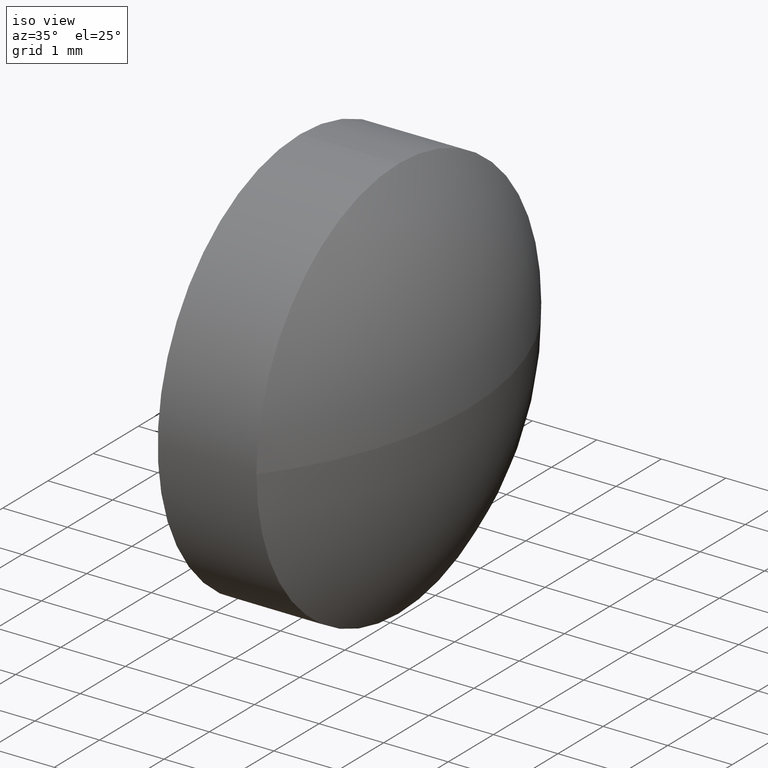
[diagram: clean part render]
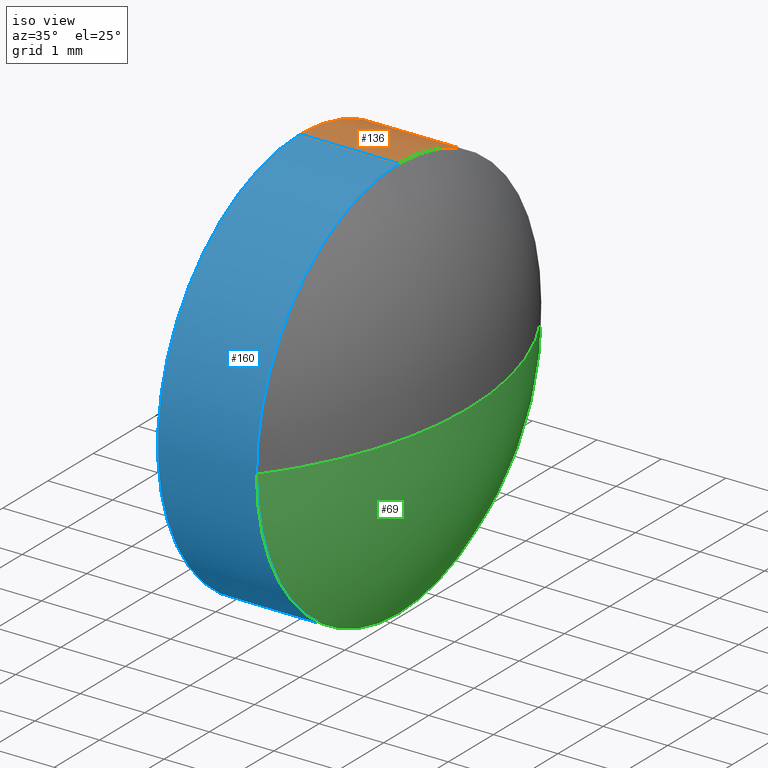
[diagram: same view with three faces highlighted in distinct colors, each labeled with its STEP entity id]
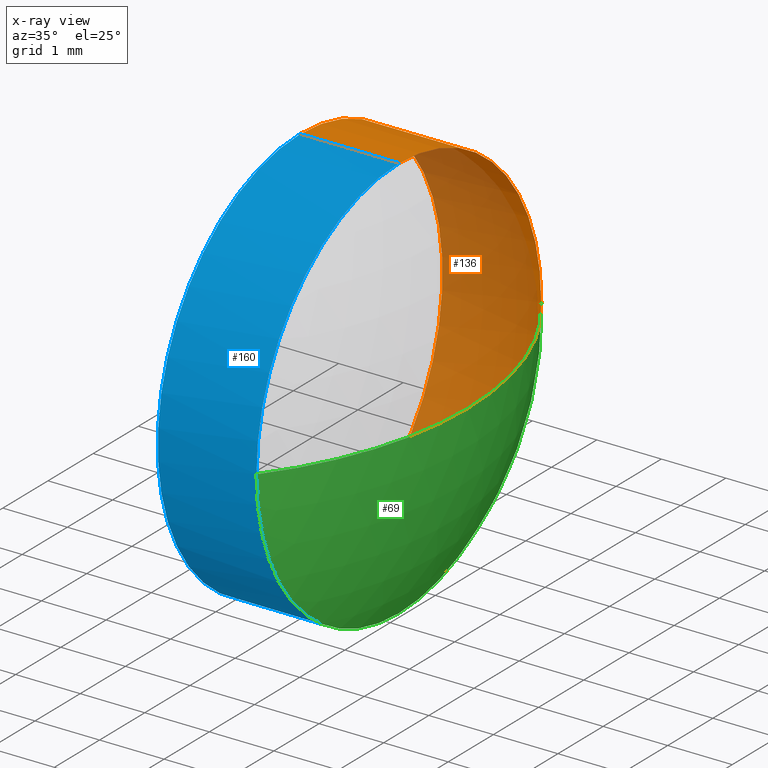
[diagram: x-ray of the same camera — body ghosted, the three highlighted faces saturated]
A machine part, iso view with three faces highlighted in distinct colors.
The next image is the same camera in x-ray (body ghosted, the three faces saturated) — at least one of them is partly hidden behind the body in this view.
Their STEP definitions:

[orange] entity #136 — the highlighted cylindrical surface (partial cylindrical patch) has radius 3.15 mm, axis along (-1, -0, -0).
#3 = DIRECTION ( 'NONE',  ( -1.000000000000000000, -0.0000000000000000000, -0.0000000000000000000 ) ) ;
#8 = FACE_OUTER_BOUND ( 'NONE', #154, .T. ) ;
#11 = CARTESIAN_POINT ( 'NONE',  ( 351.5720176784386700, 25.04791477200547300, 0.0000000000000000000 ) ) ;
#16 = CIRCLE ( 'NONE', #55, 3.149999999999996400 ) ;
#22 = CARTESIAN_POINT ( 'NONE',  ( 353.1020176784387000, 25.04791477200547300, 0.0000000000000000000 ) ) ;
#24 = VERTEX_POINT ( 'NONE', #51 ) ;
#27 = DIRECTION ( 'NONE',  ( 0.0000000000000000000, 0.0000000000000000000, 1.000000000000000000 ) ) ;
#29 = VERTEX_POINT ( 'NONE', #132 ) ;
#32 = VECTOR ( 'NONE', #131, 1000.000000000000000 ) ;
#47 = ORIENTED_EDGE ( 'NONE', *, *, #48, .F. ) ;
#48 = EDGE_CURVE ( 'NONE', #170, #24, #16, .T. ) ;
#49 = CARTESIAN_POINT ( 'NONE',  ( 350.7103895088541800, 25.04791477200547300, -3.149999999999996400 ) ) ;
#51 = CARTESIAN_POINT ( 'NONE',  ( 351.5720176784386700, 25.04791477200547300, -3.149999999999996400 ) ) ;
#55 = AXIS2_PLACEMENT_3D ( 'NONE', #11, #80, #27 ) ;
#60 = VERTEX_POINT ( 'NONE', #65 ) ;
#61 = LINE ( 'NONE', #112, #81 ) ;
#65 = CARTESIAN_POINT ( 'NONE',  ( 353.1020176784387000, 25.04791477200547300, 3.149999999999996400 ) ) ;
#71 = DIRECTION ( 'NONE',  ( 0.0000000000000000000, 0.0000000000000000000, 1.000000000000000000 ) ) ;
#72 = EDGE_CURVE ( 'NONE', #29, #134, #123, .T. ) ;
#75 = EDGE_CURVE ( 'NONE', #134, #24, #155, .T. ) ;
#80 = DIRECTION ( 'NONE',  ( -1.000000000000000000, -0.0000000000000000000, -0.0000000000000000000 ) ) ;
#81 = VECTOR ( 'NONE', #3, 1000.000000000000000 ) ;
#84 = ORIENTED_EDGE ( 'NONE', *, *, #168, .T. ) ;
#88 = DIRECTION ( 'NONE',  ( 0.0000000000000000000, 0.0000000000000000000, 1.000000000000000000 ) ) ;
#98 = CYLINDRICAL_SURFACE ( 'NONE', #153, 3.149999999999996400 ) ;
#103 = CARTESIAN_POINT ( 'NONE',  ( 353.1020176784387000, 25.04791477200547300, 0.0000000000000000000 ) ) ;
#112 = CARTESIAN_POINT ( 'NONE',  ( 350.7103895088541800, 25.04791477200547300, 3.149999999999996400 ) ) ;
#116 = ORIENTED_EDGE ( 'NONE', *, *, #75, .T. ) ;
#123 = CIRCLE ( 'NONE', #159, 3.149999999999996400 ) ;
#129 = DIRECTION ( 'NONE',  ( -1.000000000000000000, -0.0000000000000000000, -0.0000000000000000000 ) ) ;
#130 = EDGE_CURVE ( 'NONE', #60, #170, #61, .T. ) ;
#131 = DIRECTION ( 'NONE',  ( -1.000000000000000000, -0.0000000000000000000, -0.0000000000000000000 ) ) ;
#132 = CARTESIAN_POINT ( 'NONE',  ( 353.1020176784387000, 28.19791477200545800, 0.0000000000000000000 ) ) ;
#134 = VERTEX_POINT ( 'NONE', #177 ) ;
#136 = ADVANCED_FACE ( 'NONE', ( #8 ), #98, .T. ) ;
#145 = DIRECTION ( 'NONE',  ( 0.0000000000000000000, 0.0000000000000000000, 1.000000000000000000 ) ) ;
#147 = CARTESIAN_POINT ( 'NONE',  ( 350.7103895088541800, 25.04791477200547300, 0.0000000000000000000 ) ) ;
#149 = CIRCLE ( 'NONE', #186, 3.149999999999996400 ) ;
#153 = AXIS2_PLACEMENT_3D ( 'NONE', #147, #158, #88 ) ;
#154 = EDGE_LOOP ( 'NONE', ( #181, #116, #47, #165, #84 ) ) ;
#155 = LINE ( 'NONE', #49, #32 ) ;
#158 = DIRECTION ( 'NONE',  ( -1.000000000000000000, -0.0000000000000000000, -0.0000000000000000000 ) ) ;
#159 = AXIS2_PLACEMENT_3D ( 'NONE', #22, #129, #145 ) ;
#165 = ORIENTED_EDGE ( 'NONE', *, *, #130, .F. ) ;
#166 = DIRECTION ( 'NONE',  ( -1.000000000000000000, -0.0000000000000000000, -0.0000000000000000000 ) ) ;
#168 = EDGE_CURVE ( 'NONE', #60, #29, #149, .T. ) ;
#170 = VERTEX_POINT ( 'NONE', #178 ) ;
#177 = CARTESIAN_POINT ( 'NONE',  ( 353.1020176784387000, 25.04791477200547300, -3.149999999999996400 ) ) ;
#178 = CARTESIAN_POINT ( 'NONE',  ( 351.5720176784386700, 25.04791477200547300, 3.149999999999996400 ) ) ;
#181 = ORIENTED_EDGE ( 'NONE', *, *, #72, .T. ) ;
#186 = AXIS2_PLACEMENT_3D ( 'NONE', #103, #166, #71 ) ;

[blue] entity #160 — the highlighted cylindrical surface (partial cylindrical patch) has radius 3.15 mm, axis along (-1, -0, -0).
#3 = DIRECTION ( 'NONE',  ( -1.000000000000000000, -0.0000000000000000000, -0.0000000000000000000 ) ) ;
#10 = CARTESIAN_POINT ( 'NONE',  ( 353.1020176784387000, 25.04791477200547300, 0.0000000000000000000 ) ) ;
#17 = DIRECTION ( 'NONE',  ( -1.000000000000000000, -0.0000000000000000000, -0.0000000000000000000 ) ) ;
#24 = VERTEX_POINT ( 'NONE', #51 ) ;
#28 = CIRCLE ( 'NONE', #117, 3.149999999999996400 ) ;
#32 = VECTOR ( 'NONE', #131, 1000.000000000000000 ) ;
#34 = ORIENTED_EDGE ( 'NONE', *, *, #41, .T. ) ;
#38 = CARTESIAN_POINT ( 'NONE',  ( 353.1020176784387000, 21.89791477200547100, -3.857637417314142000E-016 ) ) ;
#41 = EDGE_CURVE ( 'NONE', #91, #60, #64, .T. ) ;
#42 = ORIENTED_EDGE ( 'NONE', *, *, #125, .T. ) ;
#49 = CARTESIAN_POINT ( 'NONE',  ( 350.7103895088541800, 25.04791477200547300, -3.149999999999996400 ) ) ;
#51 = CARTESIAN_POINT ( 'NONE',  ( 351.5720176784386700, 25.04791477200547300, -3.149999999999996400 ) ) ;
#52 = DIRECTION ( 'NONE',  ( 0.0000000000000000000, 0.0000000000000000000, 1.000000000000000000 ) ) ;
#56 = EDGE_LOOP ( 'NONE', ( #182, #42, #34, #95, #76 ) ) ;
#60 = VERTEX_POINT ( 'NONE', #65 ) ;
#61 = LINE ( 'NONE', #112, #81 ) ;
#64 = CIRCLE ( 'NONE', #111, 3.149999999999996400 ) ;
#65 = CARTESIAN_POINT ( 'NONE',  ( 353.1020176784387000, 25.04791477200547300, 3.149999999999996400 ) ) ;
#75 = EDGE_CURVE ( 'NONE', #134, #24, #155, .T. ) ;
#76 = ORIENTED_EDGE ( 'NONE', *, *, #133, .F. ) ;
#81 = VECTOR ( 'NONE', #3, 1000.000000000000000 ) ;
#82 = DIRECTION ( 'NONE',  ( -1.000000000000000000, -0.0000000000000000000, -0.0000000000000000000 ) ) ;
#83 = FACE_OUTER_BOUND ( 'NONE', #56, .T. ) ;
#86 = CARTESIAN_POINT ( 'NONE',  ( 350.7103895088541800, 25.04791477200547300, 0.0000000000000000000 ) ) ;
#91 = VERTEX_POINT ( 'NONE', #38 ) ;
#95 = ORIENTED_EDGE ( 'NONE', *, *, #130, .T. ) ;
#96 = DIRECTION ( 'NONE',  ( 0.0000000000000000000, 0.0000000000000000000, 1.000000000000000000 ) ) ;
#102 = CARTESIAN_POINT ( 'NONE',  ( 351.5720176784386700, 25.04791477200547300, 0.0000000000000000000 ) ) ;
#104 = AXIS2_PLACEMENT_3D ( 'NONE', #119, #137, #52 ) ;
#107 = CIRCLE ( 'NONE', #104, 3.149999999999996400 ) ;
#111 = AXIS2_PLACEMENT_3D ( 'NONE', #10, #82, #96 ) ;
#112 = CARTESIAN_POINT ( 'NONE',  ( 350.7103895088541800, 25.04791477200547300, 3.149999999999996400 ) ) ;
#117 = AXIS2_PLACEMENT_3D ( 'NONE', #102, #17, #164 ) ;
#118 = CYLINDRICAL_SURFACE ( 'NONE', #121, 3.149999999999996400 ) ;
#119 = CARTESIAN_POINT ( 'NONE',  ( 353.1020176784387000, 25.04791477200547300, 0.0000000000000000000 ) ) ;
#121 = AXIS2_PLACEMENT_3D ( 'NONE', #86, #124, #141 ) ;
#124 = DIRECTION ( 'NONE',  ( -1.000000000000000000, -0.0000000000000000000, -0.0000000000000000000 ) ) ;
#125 = EDGE_CURVE ( 'NONE', #134, #91, #107, .T. ) ;
#130 = EDGE_CURVE ( 'NONE', #60, #170, #61, .T. ) ;
#131 = DIRECTION ( 'NONE',  ( -1.000000000000000000, -0.0000000000000000000, -0.0000000000000000000 ) ) ;
#133 = EDGE_CURVE ( 'NONE', #24, #170, #28, .T. ) ;
#134 = VERTEX_POINT ( 'NONE', #177 ) ;
#137 = DIRECTION ( 'NONE',  ( -1.000000000000000000, -0.0000000000000000000, -0.0000000000000000000 ) ) ;
#141 = DIRECTION ( 'NONE',  ( 0.0000000000000000000, 0.0000000000000000000, 1.000000000000000000 ) ) ;
#155 = LINE ( 'NONE', #49, #32 ) ;
#160 = ADVANCED_FACE ( 'NONE', ( #83 ), #118, .T. ) ;
#164 = DIRECTION ( 'NONE',  ( 0.0000000000000000000, 0.0000000000000000000, 1.000000000000000000 ) ) ;
#170 = VERTEX_POINT ( 'NONE', #178 ) ;
#177 = CARTESIAN_POINT ( 'NONE',  ( 353.1020176784387000, 25.04791477200547300, -3.149999999999996400 ) ) ;
#178 = CARTESIAN_POINT ( 'NONE',  ( 351.5720176784386700, 25.04791477200547300, 3.149999999999996400 ) ) ;
#182 = ORIENTED_EDGE ( 'NONE', *, *, #75, .F. ) ;

[green] entity #69 — the highlighted spherical surface has radius 5.1717 mm.
#1 = EDGE_LOOP ( 'NONE', ( #40, #35, #152, #12 ) ) ;
#12 = ORIENTED_EDGE ( 'NONE', *, *, #72, .F. ) ;
#22 = CARTESIAN_POINT ( 'NONE',  ( 353.1020176784387000, 25.04791477200547300, 0.0000000000000000000 ) ) ;
#25 = CARTESIAN_POINT ( 'NONE',  ( 354.1720240510349500, 25.04791477200545200, 0.0000000000000000000 ) ) ;
#26 = AXIS2_PLACEMENT_3D ( 'NONE', #169, #183, #146 ) ;
#29 = VERTEX_POINT ( 'NONE', #132 ) ;
#35 = ORIENTED_EDGE ( 'NONE', *, *, #67, .T. ) ;
#38 = CARTESIAN_POINT ( 'NONE',  ( 353.1020176784387000, 21.89791477200547100, -3.857637417314142000E-016 ) ) ;
#40 = ORIENTED_EDGE ( 'NONE', *, *, #161, .F. ) ;
#52 = DIRECTION ( 'NONE',  ( 0.0000000000000000000, 0.0000000000000000000, 1.000000000000000000 ) ) ;
#59 = DIRECTION ( 'NONE',  ( -0.0000000000000000000, 0.0000000000000000000, 1.000000000000000000 ) ) ;
#67 = EDGE_CURVE ( 'NONE', #128, #91, #167, .T. ) ;
#69 = ADVANCED_FACE ( 'NONE', ( #115 ), #73, .T. ) ;
#72 = EDGE_CURVE ( 'NONE', #29, #134, #123, .T. ) ;
#73 = SPHERICAL_SURFACE ( 'NONE', #26, 5.171657814776648500 ) ;
#85 = AXIS2_PLACEMENT_3D ( 'NONE', #144, #156, #114 ) ;
#89 = DIRECTION ( 'NONE',  ( 1.000000000000000000, 0.0000000000000000000, 0.0000000000000000000 ) ) ;
#91 = VERTEX_POINT ( 'NONE', #38 ) ;
#104 = AXIS2_PLACEMENT_3D ( 'NONE', #119, #137, #52 ) ;
#107 = CIRCLE ( 'NONE', #104, 3.149999999999996400 ) ;
#114 = DIRECTION ( 'NONE',  ( 0.0000000000000000000, 1.000000000000000000, 1.224646799147353200E-016 ) ) ;
#115 = FACE_OUTER_BOUND ( 'NONE', #1, .T. ) ;
#119 = CARTESIAN_POINT ( 'NONE',  ( 353.1020176784387000, 25.04791477200547300, 0.0000000000000000000 ) ) ;
#123 = CIRCLE ( 'NONE', #159, 3.149999999999996400 ) ;
#125 = EDGE_CURVE ( 'NONE', #134, #91, #107, .T. ) ;
#126 = CIRCLE ( 'NONE', #151, 5.171657814776631700 ) ;
#128 = VERTEX_POINT ( 'NONE', #25 ) ;
#129 = DIRECTION ( 'NONE',  ( -1.000000000000000000, -0.0000000000000000000, -0.0000000000000000000 ) ) ;
#132 = CARTESIAN_POINT ( 'NONE',  ( 353.1020176784387000, 28.19791477200545800, 0.0000000000000000000 ) ) ;
#134 = VERTEX_POINT ( 'NONE', #177 ) ;
#137 = DIRECTION ( 'NONE',  ( -1.000000000000000000, -0.0000000000000000000, -0.0000000000000000000 ) ) ;
#144 = CARTESIAN_POINT ( 'NONE',  ( 349.0003662362582900, 25.04791477200545200, 0.0000000000000000000 ) ) ;
#145 = DIRECTION ( 'NONE',  ( 0.0000000000000000000, 0.0000000000000000000, 1.000000000000000000 ) ) ;
#146 = DIRECTION ( 'NONE',  ( 0.0000000000000000000, 1.000000000000000000, 0.0000000000000000000 ) ) ;
#151 = AXIS2_PLACEMENT_3D ( 'NONE', #179, #59, #89 ) ;
#152 = ORIENTED_EDGE ( 'NONE', *, *, #125, .F. ) ;
#156 = DIRECTION ( 'NONE',  ( 0.0000000000000000000, 1.224646799147353200E-016, -1.000000000000000000 ) ) ;
#159 = AXIS2_PLACEMENT_3D ( 'NONE', #22, #129, #145 ) ;
#161 = EDGE_CURVE ( 'NONE', #128, #29, #126, .T. ) ;
#167 = CIRCLE ( 'NONE', #85, 5.171657814776648500 ) ;
#169 = CARTESIAN_POINT ( 'NONE',  ( 349.0003662362582900, 25.04791477200545200, 0.0000000000000000000 ) ) ;
#177 = CARTESIAN_POINT ( 'NONE',  ( 353.1020176784387000, 25.04791477200547300, -3.149999999999996400 ) ) ;
#179 = CARTESIAN_POINT ( 'NONE',  ( 349.0003662362582900, 25.04791477200545200, 0.0000000000000000000 ) ) ;
#183 = DIRECTION ( 'NONE',  ( -0.0000000000000000000, 0.0000000000000000000, -1.000000000000000000 ) ) ;